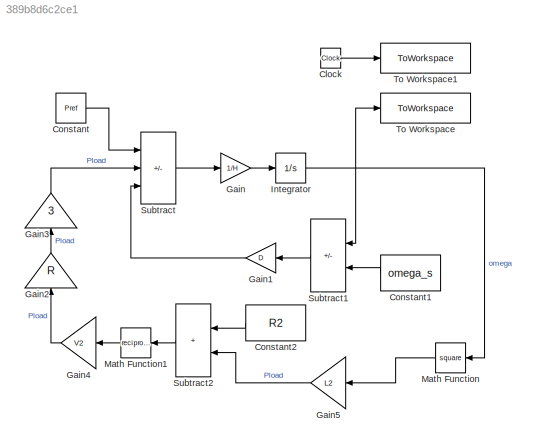
MODEL slx_389b8d6c2ce1
KIND model
CONFIG AbsTol = auto
CONFIG EnableMultiTasking = off
CONFIG FixedStep = auto
CONFIG MaxStep = 100e-6
CONFIG MinStep = auto
CONFIG RelTol = 1e-3
CONFIG SampleTimeConstraint = Unconstrained
CONFIG SolverName = VariableStepAuto
CONFIG StartTime = 0.0
CONFIG StopTime = 10
BLOCK [Clock] Clock
BLOCK [Constant] Constant
  Value = Pref
BLOCK [Constant] Constant1
  NameLocation = top
  Value = omega_s
BLOCK [Constant] Constant2
  NameLocation = top
  Value = R2
BLOCK [Gain] Gain
  Gain = 1/H
BLOCK [Gain] Gain1
  Gain = D
  NameLocation = top
BLOCK [Gain] Gain2
  Gain = R
  NameLocation = right
BLOCK [Gain] Gain3
  Gain = 3
  NameLocation = right
BLOCK [Gain] Gain4
  Gain = V2
  NameLocation = top
BLOCK [Gain] Gain5
  Gain = L2
  NameLocation = top
BLOCK [Integrator] Integrator
  InitialCondition = omega_s*0.5
BLOCK [Math] Math Function
  NameLocation = top
  Operator = square
BLOCK [Math] Math Function1
  NameLocation = top
  Operator = reciprocal
BLOCK [Sum] Subtract
  IconShape = rectangular
  Inputs = +--
BLOCK [Sum] Subtract1
  IconShape = rectangular
  Inputs = +-
  NameLocation = top
BLOCK [Sum] Subtract2
  IconShape = rectangular
  NameLocation = top
BLOCK [ToWorkspace] To Workspace
  FixptAsFi = on
  MaxDataPoints = inf
  SampleTime = -1
  VariableName = omega_y
BLOCK [ToWorkspace] To Workspace1
  FixptAsFi = on
  MaxDataPoints = inf
  SampleTime = -1
  VariableName = tsim
LINE Clock:1 -> To Workspace1:1
LINE Constant1:1 -> Subtract1:2
LINE Constant2:1 -> Subtract2:1
LINE Constant:1 -> Subtract:1
LINE Gain1:1 -> Subtract:3
LINE Gain2:1 -> Gain3:1
LINE Gain3:1 -> Subtract:2
LINE Gain4:1 -> Gain2:1
LINE Gain5:1 -> Subtract2:2
LINE Gain:1 -> Integrator:1
NET Integrator:1 -> Math Function:1, Subtract1:1, To Workspace:1
LINE Math Function1:1 -> Gain4:1
LINE Math Function:1 -> Gain5:1
LINE Subtract1:1 -> Gain1:1
LINE Subtract2:1 -> Math Function1:1
LINE Subtract:1 -> Gain:1
note: NET lines group one-source signal fan-out (src -> all destinations, sorted); 1:1 wires keep LINE
